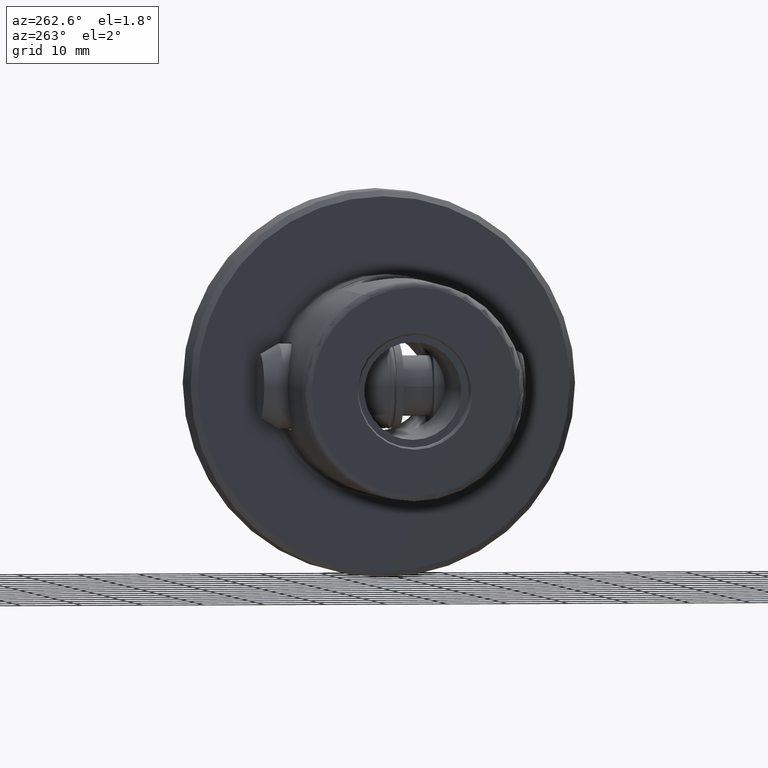
[diagram: clean part render]
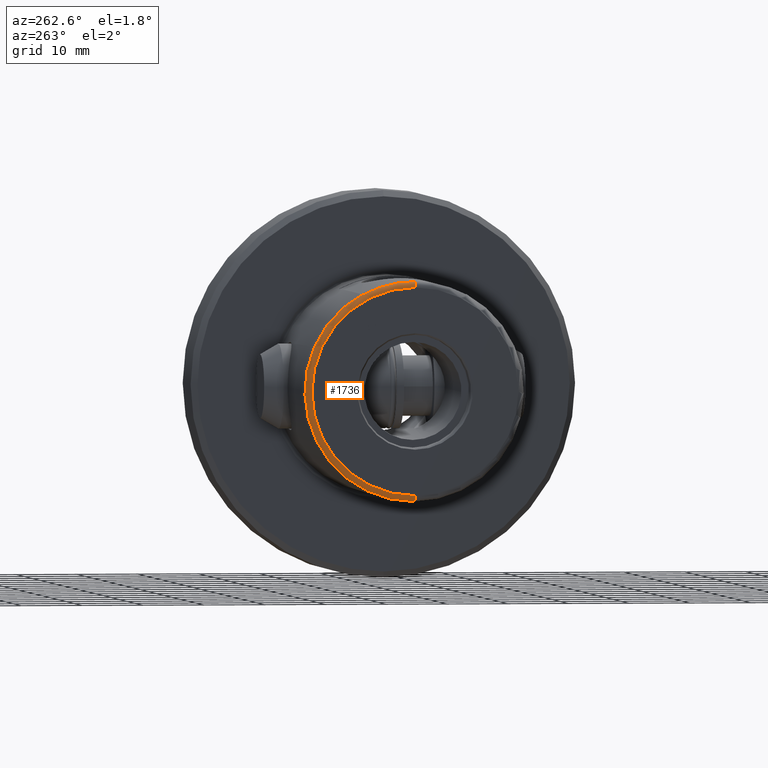
[diagram: same view with one face highlighted and labeled with its STEP entity id]
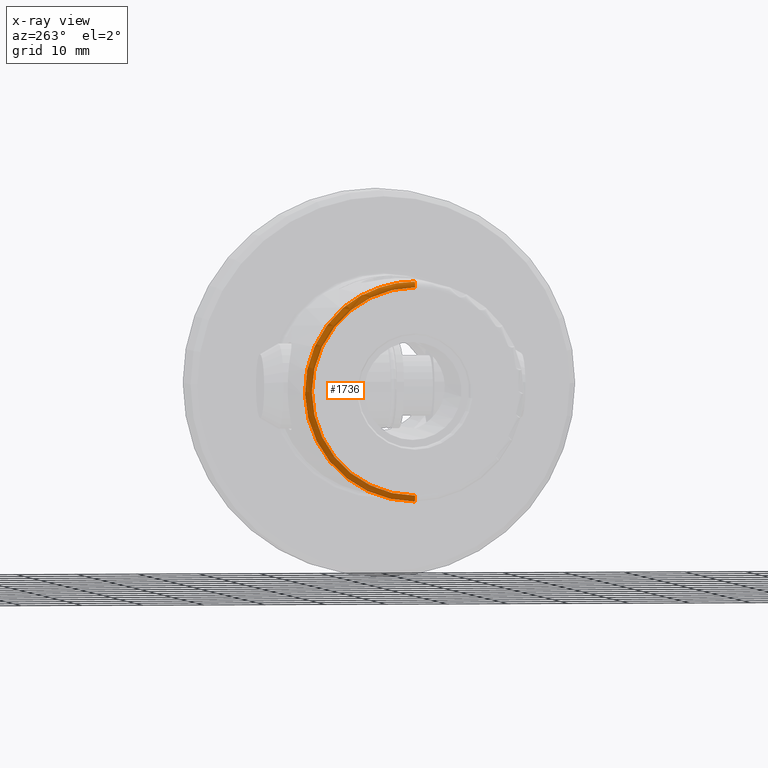
[diagram: x-ray of the same camera — body ghosted, the highlighted face saturated]
A machine part, auxiliary view. The second image highlights one B-rep face of the part: STEP entity #1736.
The next image is the same camera in x-ray: the body ghosted, the highlighted face saturated — about 0% of this face is hidden behind the body in this view.
In plain terms, the highlighted toroidal blend (fillet) surface has major radius 17 mm and minor (blend) radius 1 mm.
Its self-contained STEP definition (entity closure, byte-faithful):
#59 = EDGE_CURVE ( 'NONE', #784, #641, #1231, .T. ) ;
#95 = CARTESIAN_POINT ( 'NONE',  ( 0.9981222527496895800, 8.500000000000001800, 15.87105069833617900 ) ) ;
#171 = CARTESIAN_POINT ( 'NONE',  ( 0.6325534606832597900, 0.7409511913278183900, 17.91855654738308700 ) ) ;
#175 = B_SPLINE_CURVE_WITH_KNOTS ( 'NONE', 3,
 ( #3357, #558, #1374, #4176, #1770, #4592, #2159, #5013, #2563, #171, #2977, #578 ),
 .UNSPECIFIED., .F., .F.,
 ( 4, 2, 2, 2, 2, 4 ),
 ( 2.265434088413060900E-007, 0.002225663129928730200, 0.004451099716448619200, 0.006676536302968508200, 0.007789254596228452700, 0.008901972889488397200 ),
 .UNSPECIFIED. ) ;
#285 = CARTESIAN_POINT ( 'NONE',  ( -4.336808689942017700E-016, 0.0000000000000000000, 0.0000000000000000000 ) ) ;
#429 = DIRECTION ( 'NONE',  ( 0.0000000000000000000, 0.0000000000000000000, 1.000000000000000000 ) ) ;
#499 = CARTESIAN_POINT ( 'NONE',  ( 0.7363995605874875700, 8.500000000000001800, 15.83100539435133100 ) ) ;
#558 = CARTESIAN_POINT ( 'NONE',  ( 0.6505351002739532300, 7.845101723602740100, 16.14747078919852500 ) ) ;
#578 = CARTESIAN_POINT ( 'NONE',  ( 0.6324404810102349800, 1.084565710558474700E-011, 17.93000000000000000 ) ) ;
#641 = VERTEX_POINT ( 'NONE', #2911 ) ;
#694 = DIRECTION ( 'NONE',  ( 0.0000000000000000000, 0.0000000000000000000, 1.000000000000000000 ) ) ;
#709 = EDGE_CURVE ( 'NONE', #4703, #784, #2851, .T. ) ;
#784 = VERTEX_POINT ( 'NONE', #5045 ) ;
#858 = AXIS2_PLACEMENT_3D ( 'NONE', #285, #3084, #694 ) ;
#861 = VERTEX_POINT ( 'NONE', #2633 ) ;
#1108 = B_SPLINE_CURVE_WITH_KNOTS ( 'NONE', 3,
 ( #4102, #4081, #95, #2901, #499, #3305 ),
 .UNSPECIFIED., .F., .F.,
 ( 4, 2, 4 ),
 ( 0.006068213492623661700, 0.006330788072026524900, 0.006593362651429388000 ),
 .UNSPECIFIED. ) ;
#1168 = VERTEX_POINT ( 'NONE', #1697 ) ;
#1231 = CIRCLE ( 'NONE', #4809, 1.000000000000000900 ) ;
#1356 = CARTESIAN_POINT ( 'NONE',  ( 1.173648177666931000, 0.0000000000000000000, 0.0000000000000000000 ) ) ;
#1374 = CARTESIAN_POINT ( 'NONE',  ( 0.6473197686635989700, 7.169162838992922300, 16.45733664270533600 ) ) ;
#1413 = ORIENTED_EDGE ( 'NONE', *, *, #4003, .F. ) ;
#1531 = ORIENTED_EDGE ( 'NONE', *, *, #709, .T. ) ;
#1576 = DIRECTION ( 'NONE',  ( 0.0000000000000000000, -1.000000000000000000, 0.0000000000000000000 ) ) ;
#1677 = CIRCLE ( 'NONE', #3266, 1.000000000000000900 ) ;
#1678 = ORIENTED_EDGE ( 'NONE', *, *, #3256, .F. ) ;
#1697 = CARTESIAN_POINT ( 'NONE',  ( 0.6542505968227911900, 8.500000000000001800, 15.79663165262242700 ) ) ;
#1736 = ADVANCED_FACE ( 'NONE', ( #3219 ), #3097, .T. ) ;
#1763 = DIRECTION ( 'NONE',  ( 0.0000000000000000000, 0.0000000000000000000, 1.000000000000000000 ) ) ;
#1770 = CARTESIAN_POINT ( 'NONE',  ( 0.6396017394597193200, 5.084105004543578900, 17.21261888832962900 ) ) ;
#1928 = CARTESIAN_POINT ( 'NONE',  ( 1.000000000000000000, 2.081899558550499900E-015, -16.99999999999999300 ) ) ;
#2159 = CARTESIAN_POINT ( 'NONE',  ( 0.6346880122386147100, 2.942110066759028500, 17.70314422804933600 ) ) ;
#2563 = CARTESIAN_POINT ( 'NONE',  ( 0.6330054133423508300, 1.480283589093575300, 17.87285194226907200 ) ) ;
#2633 = CARTESIAN_POINT ( 'NONE',  ( 0.6324404810102349800, 1.084565710558474700E-011, 17.93000000000000000 ) ) ;
#2772 = VERTEX_POINT ( 'NONE', #4874 ) ;
#2821 = DIRECTION ( 'NONE',  ( -1.000000000000000000, -0.0000000000000000000, -0.0000000000000000000 ) ) ;
#2851 = CIRCLE ( 'NONE', #2854, 17.98480775301220200 ) ;
#2854 = AXIS2_PLACEMENT_3D ( 'NONE', #1356, #4162, #1763 ) ;
#2901 = CARTESIAN_POINT ( 'NONE',  ( 0.8221058920410879700, 8.500000000000001800, 15.85302790466864100 ) ) ;
#2911 = CARTESIAN_POINT ( 'NONE',  ( -4.336808689942017700E-016, 2.142201641675594700E-015, -16.99999999999999300 ) ) ;
#2977 = CARTESIAN_POINT ( 'NONE',  ( 0.6324404810102367500, 0.3691144895278926100, 17.92999999999978300 ) ) ;
#3084 = DIRECTION ( 'NONE',  ( -1.000000000000000000, -0.0000000000000000000, -0.0000000000000000000 ) ) ;
#3097 = TOROIDAL_SURFACE ( 'NONE', #4741, 16.99999999999999300, 1.000000000000000400 ) ;
#3142 = DIRECTION ( 'NONE',  ( -0.0000000000000000000, 1.000000000000000000, 1.224646799147353200E-016 ) ) ;
#3219 = FACE_OUTER_BOUND ( 'NONE', #3713, .T. ) ;
#3256 = EDGE_CURVE ( 'NONE', #4703, #1168, #1108, .T. ) ;
#3266 = AXIS2_PLACEMENT_3D ( 'NONE', #3984, #1576, #4385 ) ;
#3305 = CARTESIAN_POINT ( 'NONE',  ( 0.6542505968227911900, 8.500000000000001800, 15.79663165262242700 ) ) ;
#3357 = CARTESIAN_POINT ( 'NONE',  ( 0.6542505968227911900, 8.500000000000001800, 15.79663165262242700 ) ) ;
#3363 = EDGE_CURVE ( 'NONE', #1168, #861, #175, .T. ) ;
#3713 = EDGE_LOOP ( 'NONE', ( #1531, #4669, #4127, #1413, #4927, #1678 ) ) ;
#3844 = EDGE_CURVE ( 'NONE', #2772, #641, #5190, .T. ) ;
#3984 = CARTESIAN_POINT ( 'NONE',  ( 1.000000000000000000, 0.0000000000000000000, 16.99999999999999300 ) ) ;
#4003 = EDGE_CURVE ( 'NONE', #861, #2772, #1677, .T. ) ;
#4081 = CARTESIAN_POINT ( 'NONE',  ( 1.087489751224861600, 8.500000000000003600, 15.86663352689552500 ) ) ;
#4102 = CARTESIAN_POINT ( 'NONE',  ( 1.173648177666931000, 8.500000000000001800, 15.84939462291250200 ) ) ;
#4127 = ORIENTED_EDGE ( 'NONE', *, *, #3844, .F. ) ;
#4162 = DIRECTION ( 'NONE',  ( -1.000000000000000000, -0.0000000000000000000, -0.0000000000000000000 ) ) ;
#4176 = CARTESIAN_POINT ( 'NONE',  ( 0.6418423092002282200, 5.785599335574092400, 16.99096693161065000 ) ) ;
#4385 = DIRECTION ( 'NONE',  ( 0.0000000000000000000, 0.0000000000000000000, -1.000000000000000000 ) ) ;
#4559 = CARTESIAN_POINT ( 'NONE',  ( 1.173648177666931000, 8.500000000000001800, 15.84939462291250200 ) ) ;
#4592 = CARTESIAN_POINT ( 'NONE',  ( 0.6360243831397846000, 3.662361259201908100, 17.56871166904120700 ) ) ;
#4669 = ORIENTED_EDGE ( 'NONE', *, *, #59, .T. ) ;
#4703 = VERTEX_POINT ( 'NONE', #4559 ) ;
#4741 = AXIS2_PLACEMENT_3D ( 'NONE', #4865, #2821, #429 ) ;
#4771 = DIRECTION ( 'NONE',  ( 0.0000000000000000000, -1.224646799147353500E-016, 1.000000000000000000 ) ) ;
#4809 = AXIS2_PLACEMENT_3D ( 'NONE', #1928, #3142, #4771 ) ;
#4865 = CARTESIAN_POINT ( 'NONE',  ( 1.000000000000000000, 0.0000000000000000000, 0.0000000000000000000 ) ) ;
#4874 = CARTESIAN_POINT ( 'NONE',  ( -4.336808689942017700E-016, 0.0000000000000000000, 16.99999999999999300 ) ) ;
#4927 = ORIENTED_EDGE ( 'NONE', *, *, #3363, .F. ) ;
#5013 = CARTESIAN_POINT ( 'NONE',  ( 0.6333432282314053200, 1.847521542121686600, 17.83870824488434400 ) ) ;
#5045 = CARTESIAN_POINT ( 'NONE',  ( 1.173648177666931000, 2.202503724800689500E-015, -17.98480775301220200 ) ) ;
#5190 = CIRCLE ( 'NONE', #858, 16.99999999999999300 ) ;